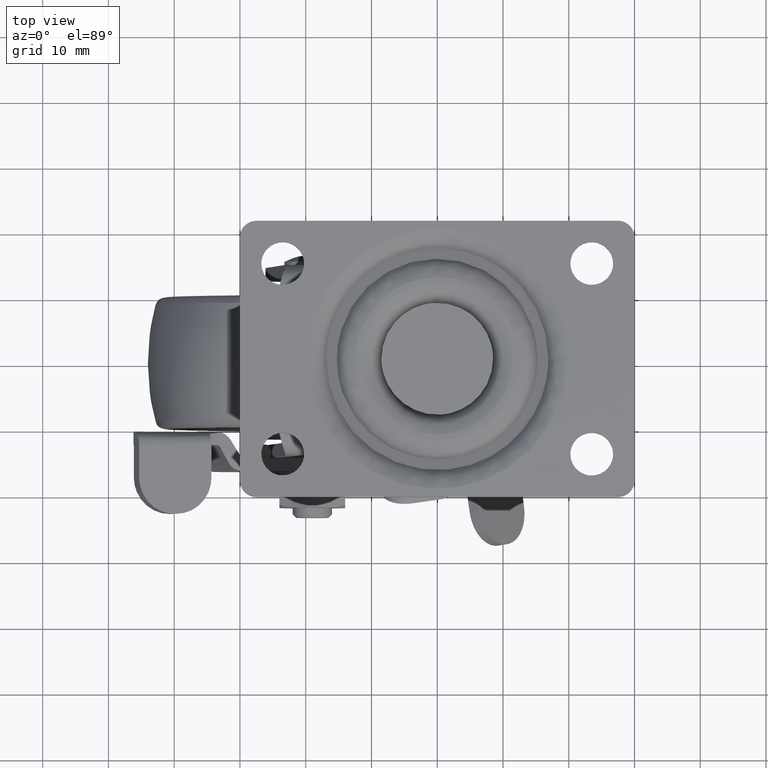
[diagram: clean part render]
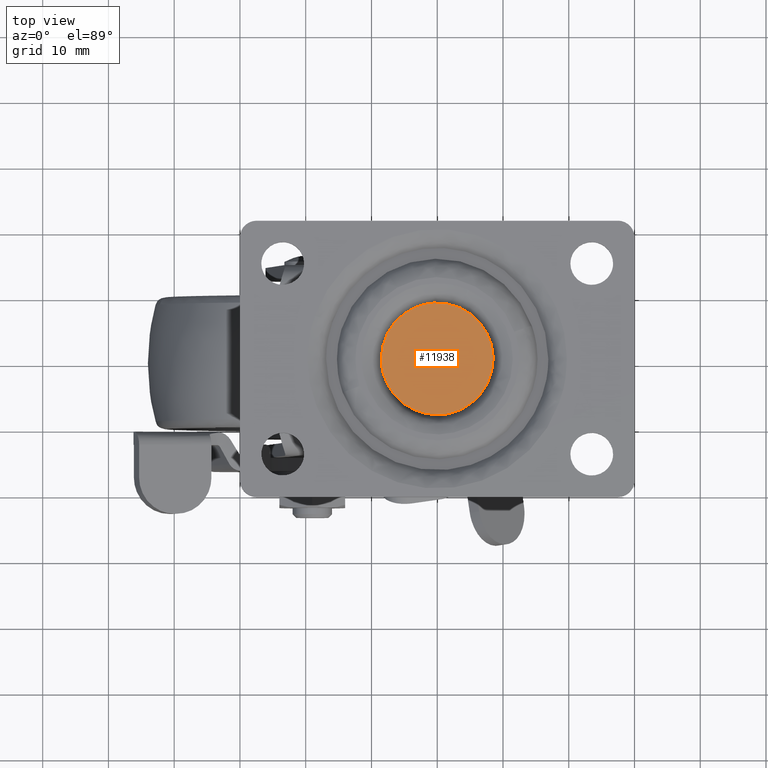
[diagram: same view with one face highlighted and labeled with its STEP entity id]
A machine part, top view. The second image highlights one B-rep face of the part: STEP entity #11938.
In plain terms, the highlighted face is a freeform B-spline surface patch.
Its self-contained STEP definition (entity closure, byte-faithful):
#11867=CARTESIAN_POINT('',(-9.349142267750731,-9.348933093000385,0.0));
#11868=CARTESIAN_POINT('',(9.349142723725889,-9.348933093000385,0.0));
#11869=CARTESIAN_POINT('',(-9.349142267750731,9.348932789016960,0.0));
#11870=CARTESIAN_POINT('',(9.349142723725889,9.348932789016960,0.0));
#11871=B_SPLINE_SURFACE_WITH_KNOTS('',1,1,((#11867,#11869),(#11868,#11870)),.UNSPECIFIED.,.F.,.F.,.U.,(2,2),(2,2),(0.0,18.698284991476619),(0.0,18.697865882017350),.UNSPECIFIED.);
#11872=CARTESIAN_POINT('',(0.518912158793970,-8.484138799636924,3.330669E-016));
#11873=VERTEX_POINT('',#11872);
#11874=CARTESIAN_POINT('',(-8.499993000000002,7.105427E-015,0.0));
#11875=VERTEX_POINT('',#11874);
#11876=CARTESIAN_POINT('',(0.518912158793970,-8.484138799636924,0.0));
#11877=CARTESIAN_POINT('',(0.259698274212517,-8.499992999999993,0.0));
#11878=CARTESIAN_POINT('',(0.0,-8.499992999999995,0.0));
#11879=CARTESIAN_POINT('',(-8.499993000000002,-8.499992999999995,0.0));
#11880=CARTESIAN_POINT('',(-8.499993000000002,7.105427E-015,0.0));
#11888=(BOUNDED_CURVE()B_SPLINE_CURVE(2,(#11876,#11877,#11878,#11879,#11880),.UNSPECIFIED.,.F.,.U.)B_SPLINE_CURVE_WITH_KNOTS((3,2,3),(0.739332962240190,0.750000000000000,1.0),.UNSPECIFIED.)CURVE()GEOMETRIC_REPRESENTATION_ITEM()RATIONAL_B_SPLINE_CURVE((0.976072041669390,0.987502787901298,1.0,0.707106781186547,1.0))REPRESENTATION_ITEM(''));
#11889=EDGE_CURVE('',#11873,#11875,#11888,.T.);
#11890=ORIENTED_EDGE('',*,*,#11889,.F.);
#11891=CARTESIAN_POINT('',(8.499993000000002,7.105427E-015,0.0));
#11892=VERTEX_POINT('',#11891);
#11893=CARTESIAN_POINT('',(8.499993000000002,7.105427E-015,0.0));
#11894=CARTESIAN_POINT('',(8.499993000000002,-7.995994983673348,0.0));
#11895=CARTESIAN_POINT('',(0.518912158793970,-8.484138799636924,0.0));
#11903=(BOUNDED_CURVE()B_SPLINE_CURVE(2,(#11893,#11894,#11895),.UNSPECIFIED.,.F.,.U.)B_SPLINE_CURVE_WITH_KNOTS((3,3),(0.500000000000000,0.739332962240190),.UNSPECIFIED.)CURVE()GEOMETRIC_REPRESENTATION_ITEM()RATIONAL_B_SPLINE_CURVE((1.0,0.719603993285250,0.976072041669390))REPRESENTATION_ITEM(''));
#11904=EDGE_CURVE('',#11892,#11873,#11903,.T.);
#11905=ORIENTED_EDGE('',*,*,#11904,.F.);
#11906=CARTESIAN_POINT('',(-0.518912158793970,8.484138799636938,3.330669E-016));
#11907=VERTEX_POINT('',#11906);
#11908=CARTESIAN_POINT('',(-0.518912158793969,8.484138799636936,0.0));
#11909=CARTESIAN_POINT('',(-0.259698274212516,8.499993000000007,0.0));
#11910=CARTESIAN_POINT('',(0.0,8.499993000000007,0.0));
#11911=CARTESIAN_POINT('',(8.499993000000002,8.499993000000007,0.0));
#11912=CARTESIAN_POINT('',(8.499993000000002,7.105427E-015,0.0));
#11920=(BOUNDED_CURVE()B_SPLINE_CURVE(2,(#11908,#11909,#11910,#11911,#11912),.UNSPECIFIED.,.F.,.U.)B_SPLINE_CURVE_WITH_KNOTS((3,2,3),(0.239332962240190,0.250000000000000,0.500000000000000),.UNSPECIFIED.)CURVE()GEOMETRIC_REPRESENTATION_ITEM()RATIONAL_B_SPLINE_CURVE((0.976072041669390,0.987502787901298,1.0,0.707106781186547,1.0))REPRESENTATION_ITEM(''));
#11921=EDGE_CURVE('',#11907,#11892,#11920,.T.);
#11922=ORIENTED_EDGE('',*,*,#11921,.F.);
#11923=CARTESIAN_POINT('',(-8.499993000000002,7.105427E-015,0.0));
#11924=CARTESIAN_POINT('',(-8.499993000000002,7.995994983673362,0.0));
#11925=CARTESIAN_POINT('',(-0.518912158793969,8.484138799636936,0.0));
#11933=(BOUNDED_CURVE()B_SPLINE_CURVE(2,(#11923,#11924,#11925),.UNSPECIFIED.,.F.,.U.)B_SPLINE_CURVE_WITH_KNOTS((3,3),(0.0,0.239332962240190),.UNSPECIFIED.)CURVE()GEOMETRIC_REPRESENTATION_ITEM()RATIONAL_B_SPLINE_CURVE((1.0,0.719603993285250,0.976072041669390))REPRESENTATION_ITEM(''));
#11934=EDGE_CURVE('',#11875,#11907,#11933,.T.);
#11935=ORIENTED_EDGE('',*,*,#11934,.F.);
#11936=EDGE_LOOP('',(#11890,#11905,#11922,#11935));
#11937=FACE_OUTER_BOUND('',#11936,.T.);
#11938=ADVANCED_FACE('',(#11937),#11871,.T.);